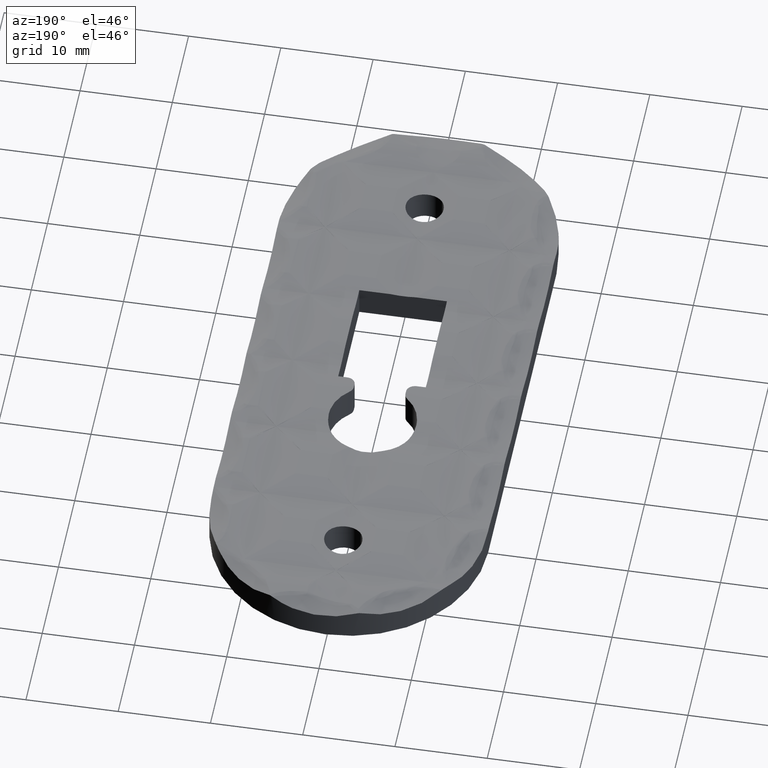
[diagram: clean part render]
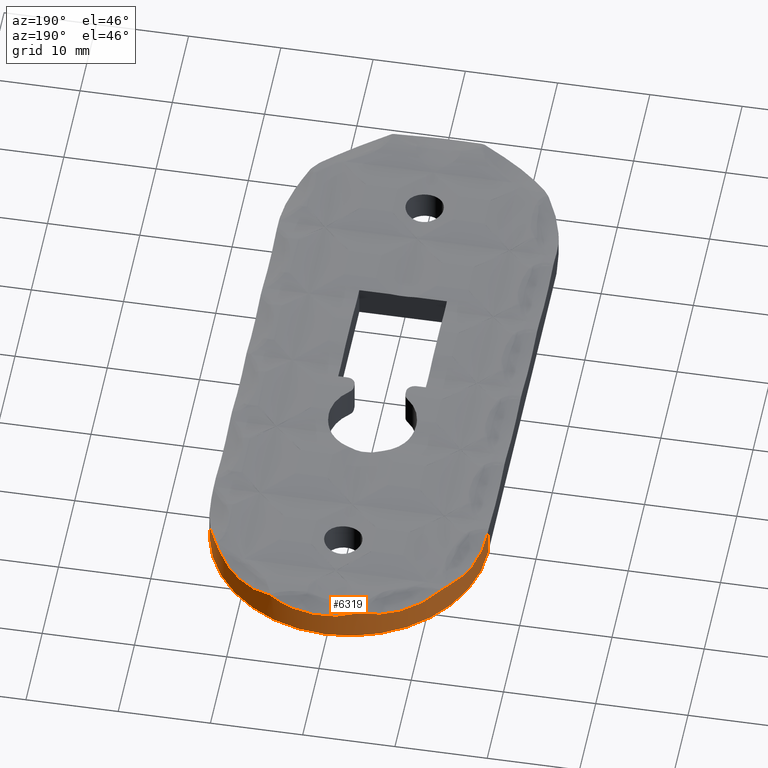
[diagram: same view with one face highlighted and labeled with its STEP entity id]
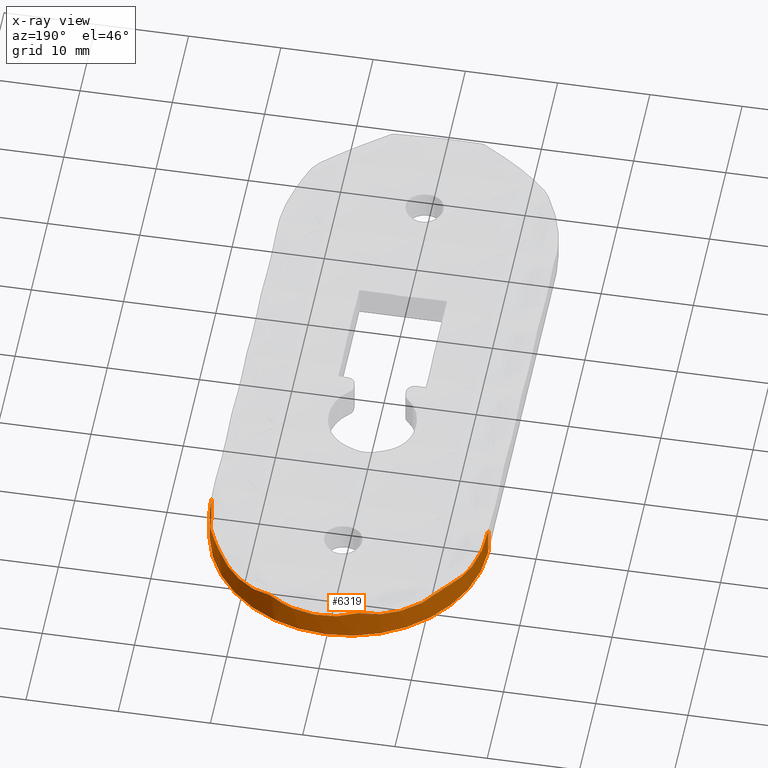
[diagram: x-ray of the same camera — body ghosted, the highlighted face saturated]
A machine part, auxiliary view. The second image highlights one B-rep face of the part: STEP entity #6319.
The next image is the same camera in x-ray: the body ghosted, the highlighted face saturated — about 0% of this face is hidden behind the body in this view.
In plain terms, the highlighted cylindrical surface (partial cylindrical patch) has radius 15 mm, axis along (-0, -0, -1).
Its self-contained STEP definition (entity closure, byte-faithful):
#20 = CARTESIAN_POINT ( 'NONE',  ( -12.31667039592205100, 29.56153411400158500, 3.244736270208724300 ) ) ;
#189 = CARTESIAN_POINT ( 'NONE',  ( 6.141994964087932600, 34.68487843793719300, 3.480176307282497800 ) ) ;
#237 = B_SPLINE_CURVE_WITH_KNOTS ( 'NONE', 3,
 ( #6748, #8706, #16150, #5052, #18034, #6916, #19895, #8787, #21758, #10609, #23674, #12519, #1345, #14364 ),
 .UNSPECIFIED., .F., .F.,
 ( 4, 2, 2, 2, 2, 2, 4 ),
 ( 0.0000000000000000000, 0.002442142642680621800, 0.003663213964020931900, 0.004884285285361242800, 0.006105356606701553700, 0.007326427928041863800, 0.009768570570722485600 ),
 .UNSPECIFIED. ) ;
#366 = CARTESIAN_POINT ( 'NONE',  ( -3.616032819107923000, 35.55761996154164000, 3.444586547274218100 ) ) ;
#434 = B_SPLINE_CURVE_WITH_KNOTS ( 'NONE', 3,
 ( #23439, #22629, #23251, #23445 ),
 .UNSPECIFIED., .F., .F.,
 ( 4, 4 ),
 ( 0.0000000000000000000, 0.0009664659503475598800 ),
 .UNSPECIFIED. ) ;
#461 = CARTESIAN_POINT ( 'NONE',  ( 12.29946961818936700, 29.59384937780055200, 3.058934068036471800 ) ) ;
#588 = EDGE_CURVE ( 'NONE', #2343, #11083, #434, .T. ) ;
#833 = VERTEX_POINT ( 'NONE', #9090 ) ;
#882 = CARTESIAN_POINT ( 'NONE',  ( 15.00000000000000400, 20.99999999999999600, 2.976199151865951200 ) ) ;
#989 = CARTESIAN_POINT ( 'NONE',  ( 13.44621258686375500, 27.64902952281130100, 3.385269468489265200 ) ) ;
#1102 = CARTESIAN_POINT ( 'NONE',  ( -14.99814776159316700, 21.43576193352045300, 3.190836122383029000 ) ) ;
#1190 = CARTESIAN_POINT ( 'NONE',  ( -13.33800160765758800, 27.87285169244900700, 2.907894788752698500 ) ) ;
#1345 = CARTESIAN_POINT ( 'NONE',  ( 5.251241240920664100, 35.07256070355536800, 3.167613495433702700 ) ) ;
#1436 = ORIENTED_EDGE ( 'NONE', *, *, #20419, .T. ) ;
#1881 = CARTESIAN_POINT ( 'NONE',  ( -12.36876536033907700, 29.48613858162013900, 3.231202252053301000 ) ) ;
#1909 = EDGE_CURVE ( 'NONE', #3477, #20331, #13909, .T. ) ;
#1966 = CARTESIAN_POINT ( 'NONE',  ( -12.30349868447172500, 29.58044166136860700, 3.246786242209930500 ) ) ;
#2124 = CARTESIAN_POINT ( 'NONE',  ( 6.050100816767014500, 34.72584034519673000, 3.458999148860504700 ) ) ;
#2293 = CARTESIAN_POINT ( 'NONE',  ( 6.246115214243658000, 34.63767035103272500, 3.495384755528476300 ) ) ;
#2343 = VERTEX_POINT ( 'NONE', #20149 ) ;
#2374 = CARTESIAN_POINT ( 'NONE',  ( 12.69208153086679400, 28.99442996487525900, 3.232580353514497700 ) ) ;
#2483 = B_SPLINE_CURVE_WITH_KNOTS ( 'NONE', 3,
 ( #16256, #18137, #19993, #8881 ),
 .UNSPECIFIED., .F., .F.,
 ( 4, 4 ),
 ( 7.059813062317230300E-018, 7.073166200627631900E-005 ),
 .UNSPECIFIED. ) ;
#2753 = CARTESIAN_POINT ( 'NONE',  ( -11.81601219521758300, 30.24777261142867600, 3.263608328780718700 ) ) ;
#2821 = EDGE_CURVE ( 'NONE', #20331, #3194, #19572, .T. ) ;
#3059 = CARTESIAN_POINT ( 'NONE',  ( 14.96869688393819500, 22.11890716335743100, 2.828698278513199300 ) ) ;
#3068 = VERTEX_POINT ( 'NONE', #21795 ) ;
#3101 = CARTESIAN_POINT ( 'NONE',  ( -12.79113614960125200, 28.84377630505677800, 3.068975393627050500 ) ) ;
#3194 = VERTEX_POINT ( 'NONE', #23950 ) ;
#3312 = CARTESIAN_POINT ( 'NONE',  ( 13.76696225164306300, 26.98055361330345300, 3.175937023740417000 ) ) ;
#3477 = VERTEX_POINT ( 'NONE', #5221 ) ;
#3501 = EDGE_CURVE ( 'NONE', #11083, #14555, #12443, .T. ) ;
#3705 = B_SPLINE_CURVE_WITH_KNOTS ( 'NONE', 3,
 ( #11734, #15566, #2753, #15733 ),
 .UNSPECIFIED., .F., .F.,
 ( 4, 4 ),
 ( 0.0000000000000000000, 0.001121131776186602400 ),
 .UNSPECIFIED. ) ;
#3720 = B_SPLINE_CURVE_WITH_KNOTS ( 'NONE', 3,
 ( #2293, #20829, #6059, #19050, #7935, #20910, #9778, #22786, #11620, #461, #13534, #2374 ),
 .UNSPECIFIED., .F., .F.,
 ( 4, 2, 2, 2, 2, 4 ),
 ( 6.124970739582110000E-010, 0.002188584022466574500, 0.004377167432436071700, 0.006565750842405569300, 0.007660042547390316000, 0.008754334252375062600 ),
 .UNSPECIFIED. ) ;
#3843 = VERTEX_POINT ( 'NONE', #882 ) ;
#3867 = CARTESIAN_POINT ( 'NONE',  ( -12.29469151079180000, 29.59305304618005300, 3.247886080121931100 ) ) ;
#4001 = CARTESIAN_POINT ( 'NONE',  ( 13.40077739296979200, 27.73937424870328500, 3.387937621075007400 ) ) ;
#4022 = CARTESIAN_POINT ( 'NONE',  ( 5.993088689097241700, 34.75074759325973900, 3.440092023895211500 ) ) ;
#4025 = CARTESIAN_POINT ( 'NONE',  ( 13.39174901620219400, 27.75732654854873300, 3.388467787145073000 ) ) ;
#4050 = CARTESIAN_POINT ( 'NONE',  ( 13.38267487007361800, 27.77527985403732900, 3.388460582374547500 ) ) ;
#4053 = CARTESIAN_POINT ( 'NONE',  ( 13.37357459533446000, 27.79319531170898100, 3.387913673841129300 ) ) ;
#4084 = CARTESIAN_POINT ( 'NONE',  ( 13.36450066619753800, 27.81105890352655100, 3.387368348626357500 ) ) ;
#4110 = EDGE_CURVE ( 'NONE', #2343, #20867, #4542, .T. ) ;
#4130 = CARTESIAN_POINT ( 'NONE',  ( 13.35539420723760400, 27.82889776515179400, 3.386286033624718700 ) ) ;
#4133 = CARTESIAN_POINT ( 'NONE',  ( 13.34627538429602600, 27.84667316048704700, 3.384666196894607900 ) ) ;
#4163 = CARTESIAN_POINT ( 'NONE',  ( 13.33752352908957300, 27.86373322264729800, 3.383111547066351300 ) ) ;
#4209 = CARTESIAN_POINT ( 'NONE',  ( 13.31998610941546000, 27.89767859827087500, 3.378514938346387300 ) ) ;
#4212 = CARTESIAN_POINT ( 'NONE',  ( 13.32875429399349100, 27.88074651088049200, 3.381060715706047900 ) ) ;
#4383 = CARTESIAN_POINT ( 'NONE',  ( -10.51824569185500400, 31.72400571022306800, 2.956214091534342000 ) ) ;
#4409 = CARTESIAN_POINT ( 'NONE',  ( -15.00000000000000000, 20.99999999999999600, 0.0000000000000000000 ) ) ;
#4537 = ORIENTED_EDGE ( 'NONE', *, *, #9983, .T. ) ;
#4542 = B_SPLINE_CURVE_WITH_KNOTS ( 'NONE', 3,
 ( #9568, #22409, #24105, #8768, #14987, #13786, #23908, #10859, #14805, #4624 ),
 .UNSPECIFIED., .F., .F.,
 ( 4, 3, 3, 4 ),
 ( 0.0000000000000000000, 0.0001169903221891126500, 0.0002117448125132666700, 0.0003068355208233893900 ),
 .UNSPECIFIED. ) ;
#4624 = CARTESIAN_POINT ( 'NONE',  ( 12.69208153086679400, 28.99442996487525900, 3.232580353514497700 ) ) ;
#4718 = ORIENTED_EDGE ( 'NONE', *, *, #1909, .F. ) ;
#4808 = AXIS2_PLACEMENT_3D ( 'NONE', #18206, #7092, #5228 ) ;
#4899 = CARTESIAN_POINT ( 'NONE',  ( -14.98289215011181800, 21.80631861055562500, 3.116201392826310400 ) ) ;
#4949 = CARTESIAN_POINT ( 'NONE',  ( 15.00000000000000400, 20.99999999999999600, 2.976199151865951200 ) ) ;
#4985 = CARTESIAN_POINT ( 'NONE',  ( -12.38573084206711500, 29.46130436138067000, 3.224234117968921800 ) ) ;
#5052 = CARTESIAN_POINT ( 'NONE',  ( -0.7503163426048847800, 35.98667021478825500, 2.866128165434772300 ) ) ;
#5187 = B_SPLINE_CURVE_WITH_KNOTS ( 'NONE', 3,
 ( #14333, #3312, #18166, #7050, #20024, #12446, #10622, #3059, #16035, #4949 ),
 .UNSPECIFIED., .F., .F.,
 ( 4, 2, 2, 2, 4 ),
 ( 0.0000000000000000000, 0.001680193828147154100, 0.003360387656294308200, 0.005040581484441462300, 0.006720775312588616500 ),
 .UNSPECIFIED. ) ;
#5221 = CARTESIAN_POINT ( 'NONE',  ( -3.512514799668328400, 35.58294186459787100, 3.444459473309671600 ) ) ;
#5228 = DIRECTION ( 'NONE',  ( -1.000000000000000000, 0.0000000000000000000, 0.0000000000000000000 ) ) ;
#5445 = DIRECTION ( 'NONE',  ( 0.0000000000000000000, 0.0000000000000000000, 1.000000000000000000 ) ) ;
#5739 = CARTESIAN_POINT ( 'NONE',  ( -12.28586793251176200, 29.60566723081369000, 3.248807919922442000 ) ) ;
#5818 = CARTESIAN_POINT ( 'NONE',  ( 6.222892506598417300, 34.64830616720869500, 3.493169474590261700 ) ) ;
#5888 = CARTESIAN_POINT ( 'NONE',  ( 5.969233181578076100, 34.76110729136889400, 3.431565772148067700 ) ) ;
#6059 = CARTESIAN_POINT ( 'NONE',  ( 7.507073457364221300, 34.00630825482708300, 3.088282597394040400 ) ) ;
#6239 = CARTESIAN_POINT ( 'NONE',  ( -8.680335779509595900, 33.25970403075903200, 2.752601715446661800 ) ) ;
#6319 = ADVANCED_FACE ( 'NONE', ( #14001 ), #23336, .T. ) ;
#6565 = CARTESIAN_POINT ( 'NONE',  ( 13.53211881035625000, 27.47159998695244800, 3.339692866800140000 ) ) ;
#6595 = CARTESIAN_POINT ( 'NONE',  ( -14.99984009453196700, 21.06926240777535100, 3.280347009881215300 ) ) ;
#6748 = CARTESIAN_POINT ( 'NONE',  ( -3.512514799668328400, 35.58294186459787100, 3.444459473309671600 ) ) ;
#6761 = CARTESIAN_POINT ( 'NONE',  ( -14.88217966734819000, 22.91252084305538300, 2.941645685777603900 ) ) ;
#6888 = CARTESIAN_POINT ( 'NONE',  ( -3.565116436051437800, 35.57017308461813300, 3.460295410526031700 ) ) ;
#6916 = CARTESIAN_POINT ( 'NONE',  ( 0.4791434672264966400, 35.99796535464208300, 2.768009124618971800 ) ) ;
#7050 = CARTESIAN_POINT ( 'NONE',  ( 14.34196481700453200, 25.42877605168421700, 2.882113004884098800 ) ) ;
#7092 = DIRECTION ( 'NONE',  ( -0.0000000000000000000, -0.0000000000000000000, -1.000000000000000000 ) ) ;
#7281 = VERTEX_POINT ( 'NONE', #20651 ) ;
#7542 = ORIENTED_EDGE ( 'NONE', *, *, #3501, .T. ) ;
#7614 = CARTESIAN_POINT ( 'NONE',  ( -12.27370849676322500, 29.62300767268773100, 3.249707780694818900 ) ) ;
#7693 = EDGE_CURVE ( 'NONE', #17739, #8899, #2483, .T. ) ;
#7792 = ORIENTED_EDGE ( 'NONE', *, *, #588, .T. ) ;
#7859 = CARTESIAN_POINT ( 'NONE',  ( -3.582212571073282600, 35.56598993813289400, 3.455478416342881800 ) ) ;
#7871 = CARTESIAN_POINT ( 'NONE',  ( -3.547475125160169300, 35.57448970229606300, 3.455440772071533200 ) ) ;
#7935 = CARTESIAN_POINT ( 'NONE',  ( 9.313161785494166600, 32.78132756828667000, 2.790732945423496100 ) ) ;
#8048 = CARTESIAN_POINT ( 'NONE',  ( -3.512514799668328400, 35.58294186459787100, 3.444459473309671600 ) ) ;
#8126 = CARTESIAN_POINT ( 'NONE',  ( -6.593782977712736600, 34.49689857516769100, 2.818454404284866000 ) ) ;
#8131 = CARTESIAN_POINT ( 'NONE',  ( 14.99999999999999800, 21.00000000000000000, 3.500000000000000000 ) ) ;
#8364 = CARTESIAN_POINT ( 'NONE',  ( -2.507294680206831200E-015, 20.99999999999999600, 0.0000000000000000000 ) ) ;
#8443 = CARTESIAN_POINT ( 'NONE',  ( 13.49033204187905200, 27.55898794312594900, 3.368837477740452600 ) ) ;
#8612 = EDGE_CURVE ( 'NONE', #17754, #20867, #3720, .T. ) ;
#8634 = CARTESIAN_POINT ( 'NONE',  ( -14.54702815655973300, 24.73454888535134800, 2.781824747635555500 ) ) ;
#8706 = CARTESIAN_POINT ( 'NONE',  ( -2.747300252893790900, 35.76725655574429700, 3.194123479318220500 ) ) ;
#8768 = CARTESIAN_POINT ( 'NONE',  ( 12.79016555550599300, 28.83655951695307000, 3.271183480374643800 ) ) ;
#8787 = CARTESIAN_POINT ( 'NONE',  ( 1.699397389336468000, 35.90899473556839900, 2.748103743465630800 ) ) ;
#8881 = CARTESIAN_POINT ( 'NONE',  ( -15.00000000000000200, 20.99999996042351600, 3.294687806597705200 ) ) ;
#8899 = VERTEX_POINT ( 'NONE', #14644 ) ;
#9090 = CARTESIAN_POINT ( 'NONE',  ( -12.38573084206711500, 29.46130436138067000, 3.224234117968921800 ) ) ;
#9374 = CARTESIAN_POINT ( 'NONE',  ( -12.35152419973424600, 29.51121529493838500, 3.236782050683856500 ) ) ;
#9457 = CARTESIAN_POINT ( 'NONE',  ( -12.25817533403653300, 29.64506434205066300, 3.250034580121477800 ) ) ;
#9461 = B_SPLINE_CURVE_WITH_KNOTS ( 'NONE', 3,
 ( #6595, #1102, #4899, #17874, #6761, #19743, #8634, #21597, #10454, #23513, #12364, #1190, #14215, #3101, #16078, #4985 ),
 .UNSPECIFIED., .F., .F.,
 ( 4, 2, 2, 2, 2, 2, 2, 4 ),
 ( -0.0007995942560029122700, 0.0003160196375456710500, 0.001431633531094254400, 0.003662861318191421000, 0.004778475211740004800, 0.005894089105288587700, 0.007009702998837170600, 0.008125316892385754300 ),
 .UNSPECIFIED. ) ;
#9533 = CARTESIAN_POINT ( 'NONE',  ( 6.176585254579648200, 34.66930117427033800, 3.486397294949066700 ) ) ;
#9568 = CARTESIAN_POINT ( 'NONE',  ( 12.85056021318364300, 28.73712492879944200, 3.283511666975385400 ) ) ;
#9778 = CARTESIAN_POINT ( 'NONE',  ( 10.92854136914727500, 31.30069119345730400, 2.772687286929507600 ) ) ;
#9875 = CARTESIAN_POINT ( 'NONE',  ( 15.00000000000000000, 20.99999999999999600, 0.0000000000000000000 ) ) ;
#9877 = CARTESIAN_POINT ( 'NONE',  ( -11.07823648312775500, 31.14357854314090400, 3.087173396015241400 ) ) ;
#9947 = CARTESIAN_POINT ( 'NONE',  ( -4.366112457275528800, 35.37130452828007100, 3.192846933338251900 ) ) ;
#9983 = EDGE_CURVE ( 'NONE', #3843, #16186, #15203, .T. ) ;
#10184 = DIRECTION ( 'NONE',  ( -1.000000000000000000, 0.0000000000000000000, 0.0000000000000000000 ) ) ;
#10454 = CARTESIAN_POINT ( 'NONE',  ( -14.08745548966011500, 26.16562701813548100, 2.780648992698274000 ) ) ;
#10609 = CARTESIAN_POINT ( 'NONE',  ( 2.906202934421420600, 35.72140704232703700, 2.805929506683086000 ) ) ;
#10622 = CARTESIAN_POINT ( 'NONE',  ( 14.84353651966163700, 23.23232238552251900, 2.771143149839348400 ) ) ;
#10677 = ORIENTED_EDGE ( 'NONE', *, *, #16242, .F. ) ;
#10859 = CARTESIAN_POINT ( 'NONE',  ( 12.72477828659606500, 28.94235362572240800, 3.248171834668089900 ) ) ;
#11021 = ORIENTED_EDGE ( 'NONE', *, *, #7693, .F. ) ;
#11083 = VERTEX_POINT ( 'NONE', #20427 ) ;
#11102 = EDGE_CURVE ( 'NONE', #833, #7281, #15601, .T. ) ;
#11205 = CARTESIAN_POINT ( 'NONE',  ( -12.32541701429443000, 29.54893730289375900, 3.243013505481608500 ) ) ;
#11362 = CARTESIAN_POINT ( 'NONE',  ( 6.153501986703640000, 34.67971389991971900, 3.482439142904846900 ) ) ;
#11538 = CARTESIAN_POINT ( 'NONE',  ( -3.599193778004537300, 35.56180295067932200, 3.450237147394521500 ) ) ;
#11620 = CARTESIAN_POINT ( 'NONE',  ( 11.87033262410030200, 30.17749439718196300, 2.931831895959941200 ) ) ;
#11734 = CARTESIAN_POINT ( 'NONE',  ( -12.25817533403653300, 29.64506434205066300, 3.250034580121477800 ) ) ;
#11872 = ORIENTED_EDGE ( 'NONE', *, *, #23140, .T. ) ;
#12008 = AXIS2_PLACEMENT_3D ( 'NONE', #8364, #21323, #10184 ) ;
#12177 = LINE ( 'NONE', #16554, #22070 ) ;
#12291 = CARTESIAN_POINT ( 'NONE',  ( -14.99984009453196700, 21.06926240777535100, 3.280347009881215300 ) ) ;
#12364 = CARTESIAN_POINT ( 'NONE',  ( -13.66228131833011400, 27.20326095300557200, 2.837345850721539900 ) ) ;
#12443 = B_SPLINE_CURVE_WITH_KNOTS ( 'NONE', 3,
 ( #4209, #4212, #4163, #4133, #4130, #4084, #4053, #4050, #4025, #4001 ),
 .UNSPECIFIED., .F., .F.,
 ( 4, 3, 3, 4 ),
 ( 0.0000000000000000000, 5.771064580297911500E-005, 0.0001178426877813085500, 0.0001781493051077739800 ),
 .UNSPECIFIED. ) ;
#12446 = CARTESIAN_POINT ( 'NONE',  ( 14.74952607931977900, 23.78783795069490400, 2.770376433558138500 ) ) ;
#12519 = CARTESIAN_POINT ( 'NONE',  ( 4.493512960761324700, 35.33440368652561900, 3.003450998956953100 ) ) ;
#12666 = EDGE_CURVE ( 'NONE', #16186, #15830, #22435, .T. ) ;
#13130 = CARTESIAN_POINT ( 'NONE',  ( -12.30788866451446500, 29.57413999313730500, 3.246103010102439500 ) ) ;
#13185 = ORIENTED_EDGE ( 'NONE', *, *, #14811, .T. ) ;
#13287 = CARTESIAN_POINT ( 'NONE',  ( 6.095891071113411100, 34.70557061140139900, 3.471110058363398500 ) ) ;
#13534 = CARTESIAN_POINT ( 'NONE',  ( 12.50184372029486600, 29.29646392593852200, 3.136731806204793700 ) ) ;
#13539 = ORIENTED_EDGE ( 'NONE', *, *, #8612, .T. ) ;
#13786 = CARTESIAN_POINT ( 'NONE',  ( 12.75748282217498400, 28.88971411025780600, 3.261082499113791700 ) ) ;
#13909 = B_SPLINE_CURVE_WITH_KNOTS ( 'NONE', 3,
 ( #8048, #17851, #7871, #21006 ),
 .UNSPECIFIED., .F., .F.,
 ( 4, 4 ),
 ( 4.562903969078220300E-016, 5.639812916218782600E-005 ),
 .UNSPECIFIED. ) ;
#14001 = FACE_OUTER_BOUND ( 'NONE', #15923, .T. ) ;
#14012 = CARTESIAN_POINT ( 'NONE',  ( 13.40077739296979200, 27.73937424870328500, 3.387937621075007400 ) ) ;
#14215 = CARTESIAN_POINT ( 'NONE',  ( -13.16371632551610200, 28.20101126389528900, 2.953355806254899000 ) ) ;
#14333 = CARTESIAN_POINT ( 'NONE',  ( 13.53211881035625000, 27.47159998695244800, 3.339692866800140000 ) ) ;
#14364 = CARTESIAN_POINT ( 'NONE',  ( 5.969233181578076100, 34.76110729136889400, 3.431565772148067700 ) ) ;
#14525 = EDGE_CURVE ( 'NONE', #17739, #833, #9461, .T. ) ;
#14540 = ORIENTED_EDGE ( 'NONE', *, *, #2821, .F. ) ;
#14542 = B_SPLINE_CURVE_WITH_KNOTS ( 'NONE', 3,
 ( #18799, #5818, #20660, #9533, #22528, #11362, #189, #13287, #2124, #15117, #4022, #17016, #5888 ),
 .UNSPECIFIED., .F., .F.,
 ( 4, 3, 3, 3, 4 ),
 ( 0.0000000000000000000, 7.691291147281143700E-005, 0.0001153420893216100900, 0.0002695656416166701500, 0.0003106037392874234400 ),
 .UNSPECIFIED. ) ;
#14555 = VERTEX_POINT ( 'NONE', #16162 ) ;
#14644 = CARTESIAN_POINT ( 'NONE',  ( -15.00000000000000200, 20.99999996042351600, 3.294687806597705200 ) ) ;
#14805 = CARTESIAN_POINT ( 'NONE',  ( 12.70840977803645800, 28.96851671091769000, 3.240782292022907900 ) ) ;
#14811 = EDGE_CURVE ( 'NONE', #3068, #3194, #16615, .T. ) ;
#14951 = CARTESIAN_POINT ( 'NONE',  ( -12.29909905074831000, 29.58674686561819900, 3.247380677669595700 ) ) ;
#14987 = CARTESIAN_POINT ( 'NONE',  ( 12.77383236356698900, 28.86321716288784200, 3.266620692021425600 ) ) ;
#15117 = CARTESIAN_POINT ( 'NONE',  ( 6.005086063015364900, 34.74550622479136300, 3.444070753635648100 ) ) ;
#15203 = LINE ( 'NONE', #8131, #21333 ) ;
#15295 = ORIENTED_EDGE ( 'NONE', *, *, #4110, .F. ) ;
#15566 = CARTESIAN_POINT ( 'NONE',  ( -12.04254081990850400, 29.95082096554650200, 3.250781852069161400 ) ) ;
#15601 = B_SPLINE_CURVE_WITH_KNOTS ( 'NONE', 3,
 ( #18641, #1881, #9374, #22382, #11205, #20, #13130, #1966, #14951, #3867, #16857, #5739, #18718, #7614, #20580, #9457 ),
 .UNSPECIFIED., .F., .F.,
 ( 4, 3, 3, 3, 3, 4 ),
 ( 0.0000000000000000000, 9.261797136650698900E-005, 0.0001388520745816184100, 0.0001619598014134788900, 0.0001850675281543922000, 0.0002254949500305309300 ),
 .UNSPECIFIED. ) ;
#15733 = CARTESIAN_POINT ( 'NONE',  ( -11.57861621871425400, 30.53601837559719800, 3.286596520088273600 ) ) ;
#15830 = VERTEX_POINT ( 'NONE', #4409 ) ;
#15923 = EDGE_LOOP ( 'NONE', ( #14540, #4718, #22065, #22835, #13539, #15295, #7792, #7542, #10677, #1436, #4537, #20986, #11872, #11021, #22121, #24158, #18846, #13185 ) ) ;
#16017 = CARTESIAN_POINT ( 'NONE',  ( 6.246115214243658000, 34.63767035103272500, 3.495384755528476300 ) ) ;
#16035 = CARTESIAN_POINT ( 'NONE',  ( 15.00000000000001200, 21.56025260585362700, 2.885318032614589500 ) ) ;
#16078 = CARTESIAN_POINT ( 'NONE',  ( -12.59299677835990200, 29.15790668349309600, 3.139104441945011800 ) ) ;
#16150 = CARTESIAN_POINT ( 'NONE',  ( -1.958887627078081500, 35.89348160195215300, 3.031703788604220900 ) ) ;
#16162 = CARTESIAN_POINT ( 'NONE',  ( 13.40077739296979200, 27.73937424870328500, 3.387937621075007400 ) ) ;
#16186 = VERTEX_POINT ( 'NONE', #9875 ) ;
#16242 = EDGE_CURVE ( 'NONE', #17863, #14555, #20966, .T. ) ;
#16256 = CARTESIAN_POINT ( 'NONE',  ( -14.99984009453196700, 21.06926240777535100, 3.280347009881215300 ) ) ;
#16551 = CARTESIAN_POINT ( 'NONE',  ( 5.969233181578076100, 34.76110729136889400, 3.431565772148067700 ) ) ;
#16554 = CARTESIAN_POINT ( 'NONE',  ( -15.00000000000000200, 20.99999999999999600, 3.500000000000000000 ) ) ;
#16615 = B_SPLINE_CURVE_WITH_KNOTS ( 'NONE', 3,
 ( #22884, #9877, #4383, #17373, #6239, #19224, #8126, #21089, #9947, #22970 ),
 .UNSPECIFIED., .F., .F.,
 ( 4, 2, 2, 2, 4 ),
 ( -0.007029974489894056300, -0.004613540479603306000, -0.002197106469312555700, 0.0002193275409781946000, 0.002635761551268944900 ),
 .UNSPECIFIED. ) ;
#16857 = CARTESIAN_POINT ( 'NONE',  ( -12.29028397084522200, 29.59935922672769600, 3.248391482573127500 ) ) ;
#17016 = CARTESIAN_POINT ( 'NONE',  ( 5.981139881932458400, 34.75594903307267500, 3.435908965191019100 ) ) ;
#17373 = CARTESIAN_POINT ( 'NONE',  ( -9.320093372934957500, 32.78022285132573900, 2.789189562202615500 ) ) ;
#17739 = VERTEX_POINT ( 'NONE', #12291 ) ;
#17754 = VERTEX_POINT ( 'NONE', #16017 ) ;
#17817 = CARTESIAN_POINT ( 'NONE',  ( 12.69208153086679400, 28.99442996487525900, 3.232580353514497700 ) ) ;
#17851 = CARTESIAN_POINT ( 'NONE',  ( -3.529932261192759500, 35.57874820324959600, 3.450156998628946400 ) ) ;
#17863 = VERTEX_POINT ( 'NONE', #24045 ) ;
#17874 = CARTESIAN_POINT ( 'NONE',  ( -14.92483122533373100, 22.54486885492386600, 2.991609362721673100 ) ) ;
#18034 = CARTESIAN_POINT ( 'NONE',  ( -0.3419283086998682900, 36.00172084372122300, 2.824725814388448600 ) ) ;
#18137 = CARTESIAN_POINT ( 'NONE',  ( -14.99994584920339100, 21.04635855402650100, 3.285940544894740100 ) ) ;
#18166 = CARTESIAN_POINT ( 'NONE',  ( 13.97679292515713500, 26.47314093144376200, 3.057221079747177500 ) ) ;
#18206 = CARTESIAN_POINT ( 'NONE',  ( -2.507294680206831200E-015, 20.99999999999999600, 3.500000000000000000 ) ) ;
#18641 = CARTESIAN_POINT ( 'NONE',  ( -12.38573084206711500, 29.46130436138067000, 3.224234117968921800 ) ) ;
#18718 = CARTESIAN_POINT ( 'NONE',  ( -12.28144515753355200, 29.61197450312612700, 3.249135228013890300 ) ) ;
#18799 = CARTESIAN_POINT ( 'NONE',  ( 6.246115214243658000, 34.63767035103272500, 3.495384755528476300 ) ) ;
#18846 = ORIENTED_EDGE ( 'NONE', *, *, #19813, .T. ) ;
#19050 = CARTESIAN_POINT ( 'NONE',  ( 8.720334257923978400, 33.22603683717346000, 2.856574998918384200 ) ) ;
#19224 = CARTESIAN_POINT ( 'NONE',  ( -7.317790175495514600, 34.11863251693045400, 2.766785862931544000 ) ) ;
#19572 = B_SPLINE_CURVE_WITH_KNOTS ( 'NONE', 3,
 ( #20824, #7859, #11538, #366 ),
 .UNSPECIFIED., .F., .F.,
 ( 4, 4 ),
 ( 3.157244383156457100E-018, 5.474321709746410500E-005 ),
 .UNSPECIFIED. ) ;
#19743 = CARTESIAN_POINT ( 'NONE',  ( -14.71351391370051500, 24.01007289226600600, 2.822019760179725400 ) ) ;
#19813 = EDGE_CURVE ( 'NONE', #7281, #3068, #3705, .T. ) ;
#19895 = CARTESIAN_POINT ( 'NONE',  ( 0.8873856886948322500, 35.97927308488598200, 2.752936130467974300 ) ) ;
#19993 = CARTESIAN_POINT ( 'NONE',  ( -15.00000000012264700, 21.02324206854728300, 3.290726778387508500 ) ) ;
#20024 = CARTESIAN_POINT ( 'NONE',  ( 14.49740184076915000, 24.89177335814051500, 2.826210473558082600 ) ) ;
#20149 = CARTESIAN_POINT ( 'NONE',  ( 12.85056021318364300, 28.73712492879944200, 3.283511666975385400 ) ) ;
#20331 = VERTEX_POINT ( 'NONE', #6888 ) ;
#20419 = EDGE_CURVE ( 'NONE', #17863, #3843, #5187, .T. ) ;
#20427 = CARTESIAN_POINT ( 'NONE',  ( 13.31998610941546000, 27.89767859827087500, 3.378514938346387300 ) ) ;
#20580 = CARTESIAN_POINT ( 'NONE',  ( -12.26594871317217500, 29.63404216341744800, 3.250007709662678500 ) ) ;
#20608 = EDGE_CURVE ( 'NONE', #17754, #21664, #14542, .T. ) ;
#20651 = CARTESIAN_POINT ( 'NONE',  ( -12.25817533403653300, 29.64506434205066300, 3.250034580121477800 ) ) ;
#20660 = CARTESIAN_POINT ( 'NONE',  ( 6.199694773183883200, 34.65885894975340200, 3.490165389433470500 ) ) ;
#20824 = CARTESIAN_POINT ( 'NONE',  ( -3.565116436051437800, 35.57017308461813300, 3.460295410526031700 ) ) ;
#20829 = CARTESIAN_POINT ( 'NONE',  ( 6.881889994904089000, 34.34648234433031900, 3.252190418813362800 ) ) ;
#20867 = VERTEX_POINT ( 'NONE', #17817 ) ;
#20910 = CARTESIAN_POINT ( 'NONE',  ( 10.41489230119028900, 31.81964325052666400, 2.749512958683487400 ) ) ;
#20966 = B_SPLINE_CURVE_WITH_KNOTS ( 'NONE', 3,
 ( #6565, #8443, #989, #14012 ),
 .UNSPECIFIED., .F., .F.,
 ( 4, 4 ),
 ( 8.055264624169107200E-018, 0.0003028202887629972700 ),
 .UNSPECIFIED. ) ;
#20986 = ORIENTED_EDGE ( 'NONE', *, *, #12666, .T. ) ;
#21006 = CARTESIAN_POINT ( 'NONE',  ( -3.565116436051437800, 35.57017308461813300, 3.460295410526031700 ) ) ;
#21089 = CARTESIAN_POINT ( 'NONE',  ( -5.115818802791033600, 35.12347843424371500, 3.033340479350443700 ) ) ;
#21093 = DIRECTION ( 'NONE',  ( -0.0000000000000000000, -0.0000000000000000000, -1.000000000000000000 ) ) ;
#21323 = DIRECTION ( 'NONE',  ( 0.0000000000000000000, 0.0000000000000000000, 1.000000000000000000 ) ) ;
#21333 = VECTOR ( 'NONE', #21093, 1000.000000000000000 ) ;
#21597 = CARTESIAN_POINT ( 'NONE',  ( -14.21308837528332700, 25.80924523471108900, 2.774117826067795900 ) ) ;
#21664 = VERTEX_POINT ( 'NONE', #16551 ) ;
#21758 = CARTESIAN_POINT ( 'NONE',  ( 2.103166617051668300, 35.85740660353734900, 2.758344623456078900 ) ) ;
#21795 = CARTESIAN_POINT ( 'NONE',  ( -11.57861621871425400, 30.53601837559719800, 3.286596520088273600 ) ) ;
#22065 = ORIENTED_EDGE ( 'NONE', *, *, #23100, .T. ) ;
#22070 = VECTOR ( 'NONE', #5445, 1000.000000000000000 ) ;
#22121 = ORIENTED_EDGE ( 'NONE', *, *, #14525, .T. ) ;
#22382 = CARTESIAN_POINT ( 'NONE',  ( -12.33411471608839000, 29.53637008161969400, 3.240937474126243800 ) ) ;
#22409 = CARTESIAN_POINT ( 'NONE',  ( 12.83048820629593900, 28.77046244853928400, 3.280967515952972300 ) ) ;
#22435 = CIRCLE ( 'NONE', #12008, 15.00000000000000000 ) ;
#22528 = CARTESIAN_POINT ( 'NONE',  ( 6.165034632891473800, 34.67452041691419100, 3.484513922360479300 ) ) ;
#22629 = CARTESIAN_POINT ( 'NONE',  ( 13.01655283976051600, 28.46142843431609400, 3.304547757343276900 ) ) ;
#22786 = CARTESIAN_POINT ( 'NONE',  ( 11.64271041996452600, 30.46475609600599900, 2.882479462378213500 ) ) ;
#22835 = ORIENTED_EDGE ( 'NONE', *, *, #20608, .F. ) ;
#22884 = CARTESIAN_POINT ( 'NONE',  ( -11.57861621871425400, 30.53601837559719800, 3.286596520088273600 ) ) ;
#22970 = CARTESIAN_POINT ( 'NONE',  ( -3.616032819107923000, 35.55761996154164000, 3.444586547274218100 ) ) ;
#23100 = EDGE_CURVE ( 'NONE', #3477, #21664, #237, .T. ) ;
#23140 = EDGE_CURVE ( 'NONE', #15830, #8899, #12177, .T. ) ;
#23251 = CARTESIAN_POINT ( 'NONE',  ( 13.17298664151274700, 28.18154669137309700, 3.335834733389978700 ) ) ;
#23336 = CYLINDRICAL_SURFACE ( 'NONE', #4808, 15.00000000000000000 ) ;
#23439 = CARTESIAN_POINT ( 'NONE',  ( 12.85056021318364300, 28.73712492879944200, 3.283511666975385400 ) ) ;
#23445 = CARTESIAN_POINT ( 'NONE',  ( 13.31998610941546000, 27.89767859827087500, 3.378514938346387300 ) ) ;
#23513 = CARTESIAN_POINT ( 'NONE',  ( -13.81227961066009300, 26.86182877782945500, 2.812287292121436800 ) ) ;
#23674 = CARTESIAN_POINT ( 'NONE',  ( 3.306550263844890000, 35.63671487379835400, 2.843380970399760300 ) ) ;
#23908 = CARTESIAN_POINT ( 'NONE',  ( 12.74115976046963900, 28.91598685939973400, 3.254638696482941000 ) ) ;
#23950 = CARTESIAN_POINT ( 'NONE',  ( -3.616032819107923000, 35.55761996154164000, 3.444586547274218100 ) ) ;
#24045 = CARTESIAN_POINT ( 'NONE',  ( 13.53211881035625000, 27.47159998695244800, 3.339692866800140000 ) ) ;
#24105 = CARTESIAN_POINT ( 'NONE',  ( 12.81032535079573600, 28.80365641467162500, 3.276815256422755500 ) ) ;
#24158 = ORIENTED_EDGE ( 'NONE', *, *, #11102, .T. ) ;